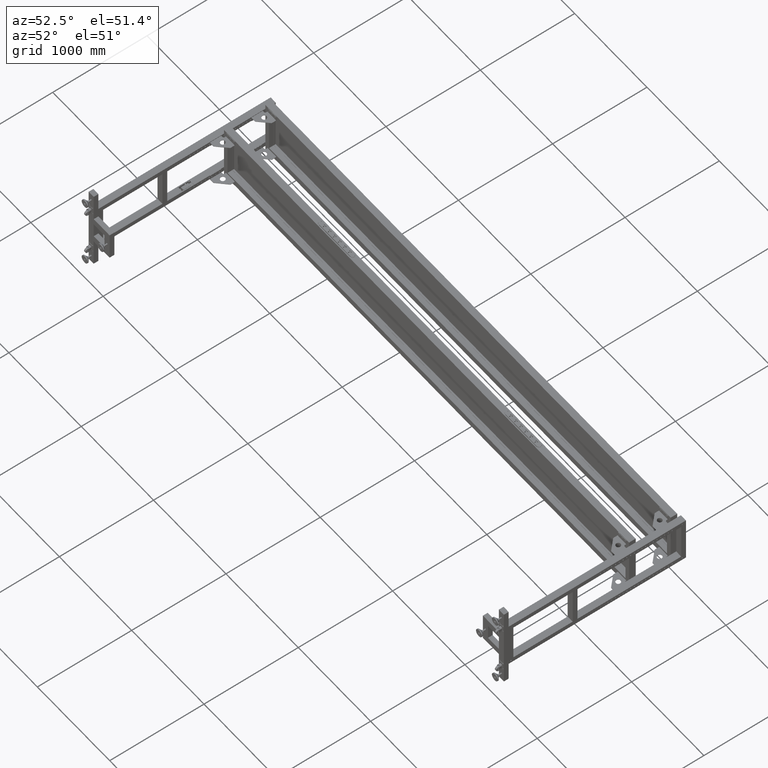
[diagram: clean part render]
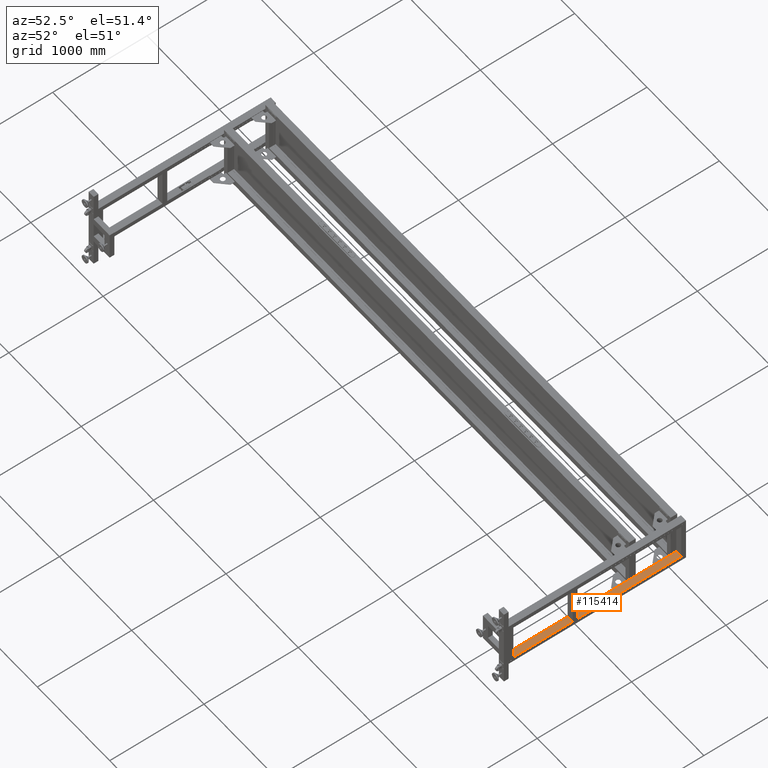
[diagram: same view with one face highlighted and labeled with its STEP entity id]
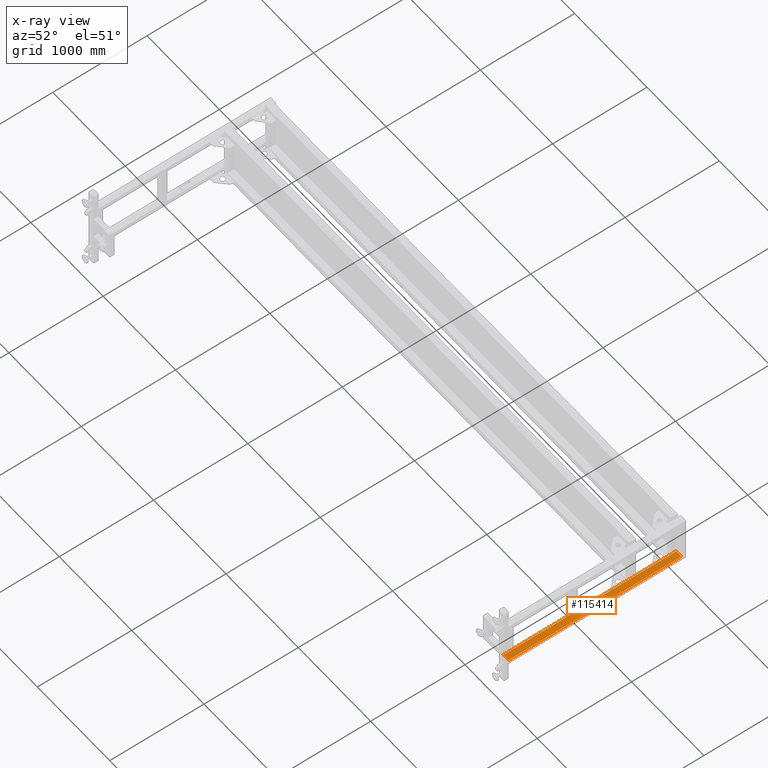
[diagram: x-ray of the same camera — body ghosted, the highlighted face saturated]
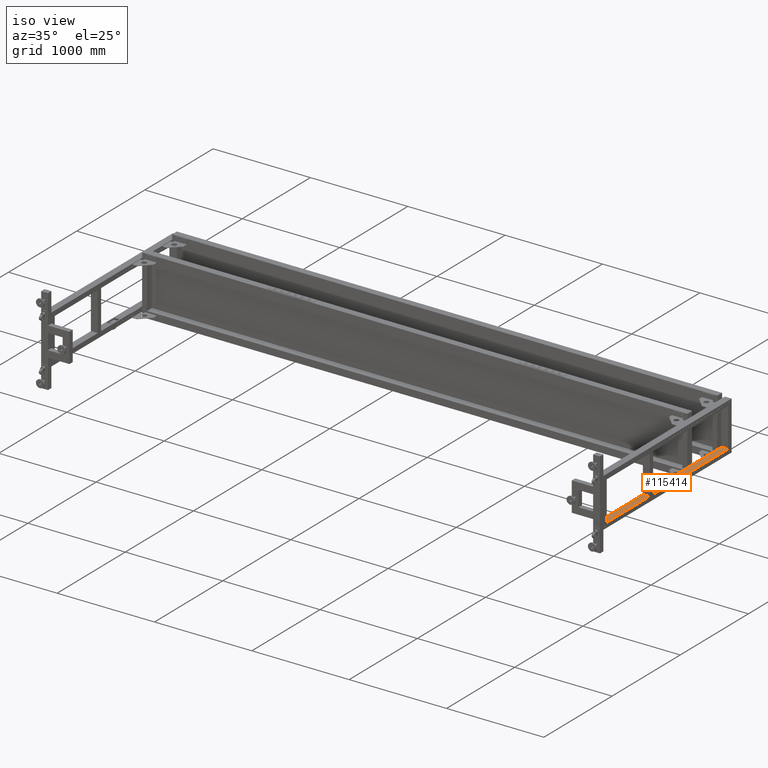
[diagram: same view with one face highlighted and labeled with its STEP entity id]
A machine part, auxiliary view. The second image highlights one B-rep face of the part: STEP entity #115414.
The next image is the same camera in x-ray: the body ghosted, the highlighted face saturated — about 0% of this face is hidden behind the body in this view.
A second angle (iso view) of the same face is appended — the face is thin or edge-on in the first view.
In plain terms, the highlighted planar face has unit normal (0, 0, 1).
Its self-contained STEP definition (entity closure, byte-faithful):
#433 = VERTEX_POINT ( 'NONE', #47739 ) ;
#3415 = EDGE_CURVE ( 'NONE', #86851, #70181, #33307, .T. ) ;
#3940 = LINE ( 'NONE', #13107, #88512 ) ;
#5011 = EDGE_CURVE ( 'NONE', #17863, #118865, #97473, .T. ) ;
#6108 = CARTESIAN_POINT ( 'NONE',  ( 4331.827512562817901, -844.5589195979882788, -200.0000000000000000 ) ) ;
#6179 = DIRECTION ( 'NONE',  ( 3.178231158697545349E-16, -1.000000000000000000, 0.000000000000000000 ) ) ;
#13107 = CARTESIAN_POINT ( 'NONE',  ( 4331.811469511923860, 986.4410804020144496, -200.0000000000000284 ) ) ;
#13144 = ORIENTED_EDGE ( 'NONE', *, *, #3415, .F. ) ;
#13674 = CARTESIAN_POINT ( 'NONE',  ( 4401.827512562814263, 986.4410804020144496, -200.0000000000000284 ) ) ;
#14196 = CARTESIAN_POINT ( 'NONE',  ( 4401.827512562814263, 919.4410804020145633, -200.0000000000000284 ) ) ;
#14581 = VECTOR ( 'NONE', #112556, 1000.000000000000000 ) ;
#17863 = VERTEX_POINT ( 'NONE', #34824 ) ;
#21107 = CARTESIAN_POINT ( 'NONE',  ( 4331.811469511923860, 926.9410804020137675, -200.0000000000000284 ) ) ;
#22336 = ORIENTED_EDGE ( 'NONE', *, *, #111348, .F. ) ;
#22411 = VECTOR ( 'NONE', #59992, 1000.000000000000000 ) ;
#22980 = CARTESIAN_POINT ( 'NONE',  ( 4401.827512562815173, -844.5589195979881652, -200.0000000000000000 ) ) ;
#24162 = VECTOR ( 'NONE', #50731, 1000.000000000000000 ) ;
#32988 = DIRECTION ( 'NONE',  ( 1.000000000000000000, 7.627116035571765889E-16, 0.000000000000000000 ) ) ;
#33307 = LINE ( 'NONE', #107491, #37968 ) ;
#34822 = PLANE ( 'NONE',  #89675 ) ;
#34824 = CARTESIAN_POINT ( 'NONE',  ( 4331.827512562814263, 919.4410804020118348, -200.0000000000000000 ) ) ;
#37613 = EDGE_CURVE ( 'NONE', #70181, #17863, #110761, .T. ) ;
#37968 = VECTOR ( 'NONE', #81171, 1000.000000000000000 ) ;
#43305 = DIRECTION ( 'NONE',  ( -1.317823115869754662E-15, 1.000000000000000000, 0.000000000000000000 ) ) ;
#47739 = CARTESIAN_POINT ( 'NONE',  ( 4331.827512562816082, 926.9410804020136538, -200.0000000000000000 ) ) ;
#48971 = DIRECTION ( 'NONE',  ( 1.317823115869754465E-15, -1.000000000000000000, -0.000000000000000000 ) ) ;
#50141 = LINE ( 'NONE', #13674, #24162 ) ;
#50731 = DIRECTION ( 'NONE',  ( -1.000000000000000000, -1.903492594246575929E-15, 0.000000000000000000 ) ) ;
#51728 = EDGE_CURVE ( 'NONE', #86851, #91192, #106300, .T. ) ;
#51938 = ORIENTED_EDGE ( 'NONE', *, *, #115187, .F. ) ;
#54672 = VECTOR ( 'NONE', #32988, 1000.000000000000000 ) ;
#59992 = DIRECTION ( 'NONE',  ( -3.178231158697545349E-16, 1.000000000000000000, 0.000000000000000000 ) ) ;
#60002 = CARTESIAN_POINT ( 'NONE',  ( 4331.827512562816082, 986.4410804020144496, -200.0000000000000284 ) ) ;
#63250 = ORIENTED_EDGE ( 'NONE', *, *, #100692, .T. ) ;
#67518 = ORIENTED_EDGE ( 'NONE', *, *, #5011, .F. ) ;
#69956 = CARTESIAN_POINT ( 'NONE',  ( 4401.827512562813354, 926.9410804020137675, -200.0000000000000000 ) ) ;
#70019 = DIRECTION ( 'NONE',  ( -1.000000000000000000, -1.903492594246575929E-15, 0.000000000000000000 ) ) ;
#70181 = VERTEX_POINT ( 'NONE', #94917 ) ;
#80373 = VECTOR ( 'NONE', #43305, 1000.000000000000000 ) ;
#80885 = CARTESIAN_POINT ( 'NONE',  ( 4401.827512562815173, -844.5589195979881652, -200.0000000000000000 ) ) ;
#81171 = DIRECTION ( 'NONE',  ( -1.000000000000000000, -3.178231158697545349E-16, 0.000000000000000000 ) ) ;
#84127 = CARTESIAN_POINT ( 'NONE',  ( 4401.827512562814263, 986.4410804020144496, -200.0000000000000284 ) ) ;
#86851 = VERTEX_POINT ( 'NONE', #111173 ) ;
#88512 = VECTOR ( 'NONE', #48971, 1000.000000000000000 ) ;
#89360 = LINE ( 'NONE', #6108, #80373 ) ;
#89675 = AXIS2_PLACEMENT_3D ( 'NONE', #80885, #118121, #6179 ) ;
#91019 = VERTEX_POINT ( 'NONE', #21107 ) ;
#91192 = VERTEX_POINT ( 'NONE', #84127 ) ;
#94917 = CARTESIAN_POINT ( 'NONE',  ( 4331.827512562815173, -844.5589195979881652, -200.0000000000000000 ) ) ;
#95156 = EDGE_LOOP ( 'NONE', ( #96123, #67518, #109715, #13144, #109217, #63250, #22336, #51938 ) ) ;
#96123 = ORIENTED_EDGE ( 'NONE', *, *, #118486, .T. ) ;
#96927 = VECTOR ( 'NONE', #70019, 1000.000000000000000 ) ;
#97473 = LINE ( 'NONE', #14196, #96927 ) ;
#99522 = FACE_OUTER_BOUND ( 'NONE', #95156, .T. ) ;
#100692 = EDGE_CURVE ( 'NONE', #91192, #116648, #50141, .T. ) ;
#103397 = CARTESIAN_POINT ( 'NONE',  ( 4331.827512562815173, -844.5589195979881652, -200.0000000000000000 ) ) ;
#103589 = CARTESIAN_POINT ( 'NONE',  ( 4331.811469511923860, 919.4410804020144496, -200.0000000000000284 ) ) ;
#106300 = LINE ( 'NONE', #22980, #22411 ) ;
#107491 = CARTESIAN_POINT ( 'NONE',  ( 4401.827512562815173, -844.5589195979881652, -200.0000000000000000 ) ) ;
#109217 = ORIENTED_EDGE ( 'NONE', *, *, #51728, .T. ) ;
#109715 = ORIENTED_EDGE ( 'NONE', *, *, #37613, .F. ) ;
#110761 = LINE ( 'NONE', #103397, #14581 ) ;
#111173 = CARTESIAN_POINT ( 'NONE',  ( 4401.827512562815173, -844.5589195979881652, -200.0000000000000000 ) ) ;
#111348 = EDGE_CURVE ( 'NONE', #433, #116648, #89360, .T. ) ;
#112556 = DIRECTION ( 'NONE',  ( -3.178231158697545349E-16, 1.000000000000000000, 0.000000000000000000 ) ) ;
#115187 = EDGE_CURVE ( 'NONE', #91019, #433, #116299, .T. ) ;
#115414 = ADVANCED_FACE ( 'NONE', ( #99522 ), #34822, .T. ) ;
#116299 = LINE ( 'NONE', #69956, #54672 ) ;
#116648 = VERTEX_POINT ( 'NONE', #60002 ) ;
#118121 = DIRECTION ( 'NONE',  ( 0.000000000000000000, 0.000000000000000000, 1.000000000000000000 ) ) ;
#118486 = EDGE_CURVE ( 'NONE', #91019, #118865, #3940, .T. ) ;
#118865 = VERTEX_POINT ( 'NONE', #103589 ) ;